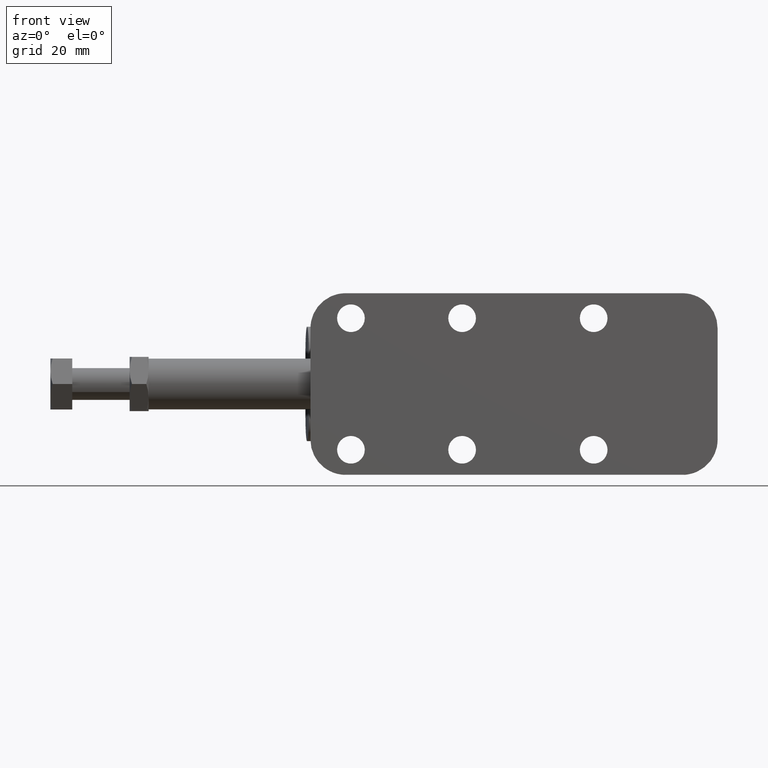
[diagram: clean part render]
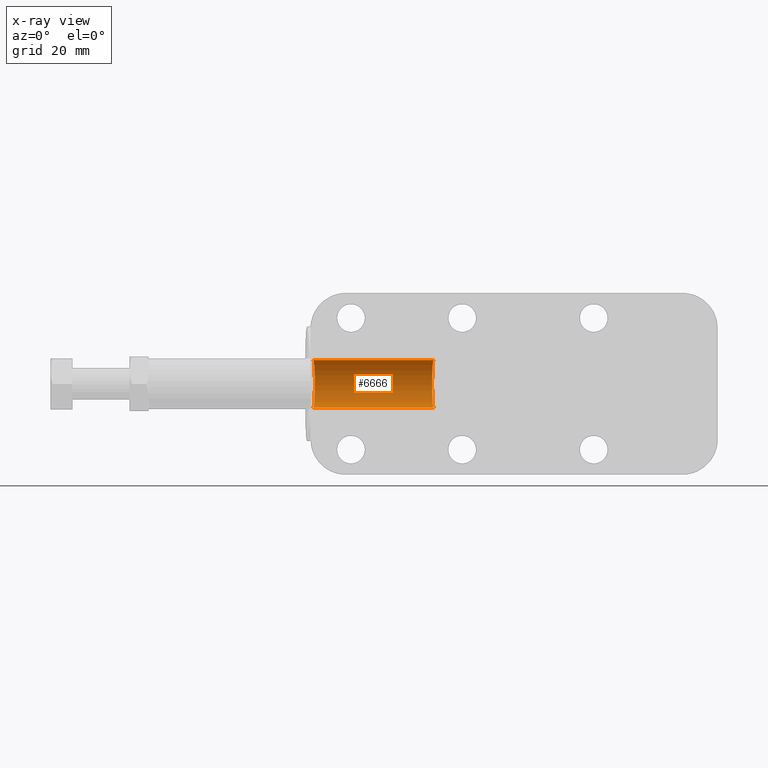
[diagram: x-ray — body ghosted, one internal face saturated and labeled with its STEP entity id]
A machine part, front view, then the same camera in x-ray: the body is ghosted and one INTERNAL B-rep face — a face not visible from any outside direction — is saturated and labeled: STEP entity #6666.
In plain terms, the highlighted cylindrical surface (edge-blend (fillet) strip) has radius 7.5 mm, axis along (-1, -0, -0).
Its self-contained STEP definition (entity closure, byte-faithful):
#287 =( BOUNDED_CURVE ( )  B_SPLINE_CURVE ( 3, ( #4642, #3620, #5199, #4128 ),
 .UNSPECIFIED., .F., .T. ) 
 B_SPLINE_CURVE_WITH_KNOTS ( ( 4, 4 ),
 ( 4.712388980384689700, 7.853981633974482800 ),
 .UNSPECIFIED. ) 
 CURVE ( )  GEOMETRIC_REPRESENTATION_ITEM ( )  RATIONAL_B_SPLINE_CURVE ( ( 1.000000000000000000, 0.3333333333333333700, 0.3333333333333333700, 1.000000000000000000 ) ) 
 REPRESENTATION_ITEM ( '' )  );
#311 = LINE ( 'NONE', #5195, #4110 ) ;
#397 = CARTESIAN_POINT ( 'NONE',  ( 61.15990299714859900, 20.60000000000000100, 7.500000000000000000 ) ) ;
#503 = EDGE_CURVE ( 'NONE', #3694, #618, #287, .T. ) ;
#550 = ORIENTED_EDGE ( 'NONE', *, *, #898, .F. ) ;
#618 = VERTEX_POINT ( 'NONE', #5881 ) ;
#886 = CARTESIAN_POINT ( 'NONE',  ( 38.65289771091588700, 20.60000000000000100, -7.500000000000000000 ) ) ;
#898 = EDGE_CURVE ( 'NONE', #998, #1233, #5746, .T. ) ;
#927 = FACE_OUTER_BOUND ( 'NONE', #4177, .T. ) ;
#998 = VERTEX_POINT ( 'NONE', #1275 ) ;
#1200 = CARTESIAN_POINT ( 'NONE',  ( 38.65289771091588700, 20.60000000000000100, -7.500000000000000000 ) ) ;
#1233 = VERTEX_POINT ( 'NONE', #886 ) ;
#1275 = CARTESIAN_POINT ( 'NONE',  ( 38.65289771091588700, 20.60000000000000100, 7.500000000000000000 ) ) ;
#1510 = ORIENTED_EDGE ( 'NONE', *, *, #4174, .T. ) ;
#1549 = CARTESIAN_POINT ( 'NONE',  ( 0.8743666374695612300, 20.60000000000000100, 7.500000000000000000 ) ) ;
#2081 = ORIENTED_EDGE ( 'NONE', *, *, #503, .T. ) ;
#2491 = DIRECTION ( 'NONE',  ( -1.000000000000000000, -0.0000000000000000000, -0.0000000000000000000 ) ) ;
#2625 = CARTESIAN_POINT ( 'NONE',  ( 61.15990299714859900, 20.60000000000000100, 0.0000000000000000000 ) ) ;
#2728 = EDGE_CURVE ( 'NONE', #1233, #618, #311, .T. ) ;
#2791 = CARTESIAN_POINT ( 'NONE',  ( 38.65289771091588700, 20.60000000000000100, 7.500000000000000000 ) ) ;
#3032 = AXIS2_PLACEMENT_3D ( 'NONE', #2625, #5211, #5743 ) ;
#3620 = CARTESIAN_POINT ( 'NONE',  ( 1.821334114873419200, 35.60000000000000100, 7.500000000000006200 ) ) ;
#3694 = VERTEX_POINT ( 'NONE', #1549 ) ;
#4020 = LINE ( 'NONE', #397, #5268 ) ;
#4110 = VECTOR ( 'NONE', #6258, 1000.000000000000000 ) ;
#4128 = CARTESIAN_POINT ( 'NONE',  ( 0.8743666374695612300, 20.60000000000000100, -7.500000000000000000 ) ) ;
#4174 = EDGE_CURVE ( 'NONE', #998, #3694, #4020, .T. ) ;
#4177 = EDGE_LOOP ( 'NONE', ( #5095, #550, #1510, #2081 ) ) ;
#4642 = CARTESIAN_POINT ( 'NONE',  ( 0.8743666374695612300, 20.60000000000000100, 7.500000000000000000 ) ) ;
#4837 = CARTESIAN_POINT ( 'NONE',  ( 37.73545840865872900, 35.60000000000000100, -7.500000000000000900 ) ) ;
#4918 = CYLINDRICAL_SURFACE ( 'NONE', #3032, 7.500000000000000000 ) ;
#5095 = ORIENTED_EDGE ( 'NONE', *, *, #2728, .F. ) ;
#5195 = CARTESIAN_POINT ( 'NONE',  ( 61.15990299714859900, 20.60000000000000100, -7.500000000000000000 ) ) ;
#5199 = CARTESIAN_POINT ( 'NONE',  ( 1.821334114873419700, 35.60000000000000100, -7.500000000000000900 ) ) ;
#5211 = DIRECTION ( 'NONE',  ( -1.000000000000000000, -0.0000000000000000000, -0.0000000000000000000 ) ) ;
#5268 = VECTOR ( 'NONE', #2491, 1000.000000000000000 ) ;
#5743 = DIRECTION ( 'NONE',  ( 0.0000000000000000000, 0.0000000000000000000, 1.000000000000000000 ) ) ;
#5746 =( BOUNDED_CURVE ( )  B_SPLINE_CURVE ( 3, ( #2791, #6462, #4837, #1200 ),
 .UNSPECIFIED., .F., .T. ) 
 B_SPLINE_CURVE_WITH_KNOTS ( ( 4, 4 ),
 ( 4.712388980384689700, 7.853981633974482800 ),
 .UNSPECIFIED. ) 
 CURVE ( )  GEOMETRIC_REPRESENTATION_ITEM ( )  RATIONAL_B_SPLINE_CURVE ( ( 1.000000000000000000, 0.3333333333333333700, 0.3333333333333333700, 1.000000000000000000 ) ) 
 REPRESENTATION_ITEM ( '' )  );
#5881 = CARTESIAN_POINT ( 'NONE',  ( 0.8743666374695612300, 20.60000000000000100, -7.500000000000000000 ) ) ;
#6258 = DIRECTION ( 'NONE',  ( -1.000000000000000000, -0.0000000000000000000, -0.0000000000000000000 ) ) ;
#6462 = CARTESIAN_POINT ( 'NONE',  ( 37.73545840865872900, 35.60000000000000100, 7.500000000000003600 ) ) ;
#6666 = ADVANCED_FACE ( 'NONE', ( #927 ), #4918, .F. ) ;